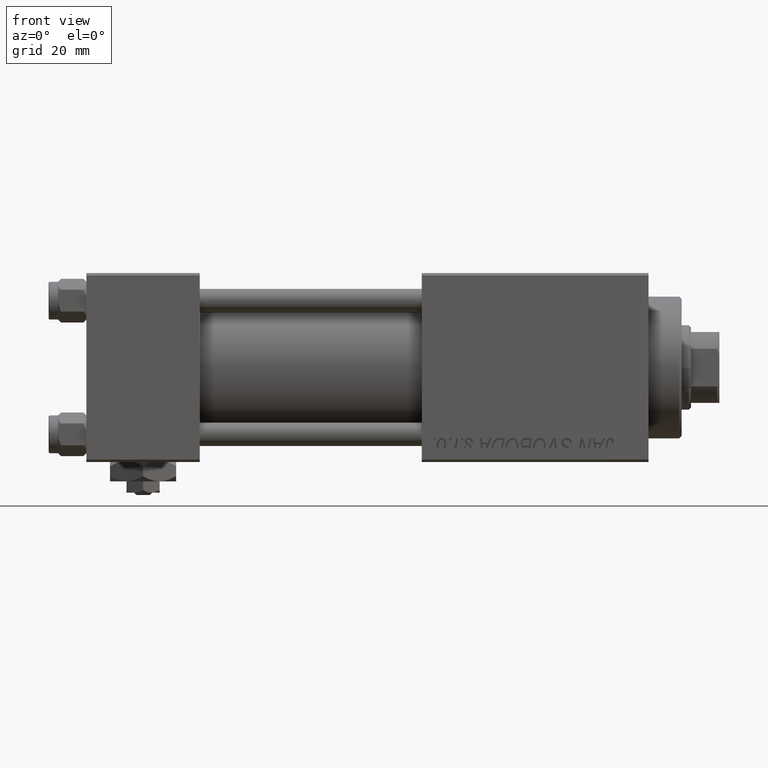
[diagram: clean part render]
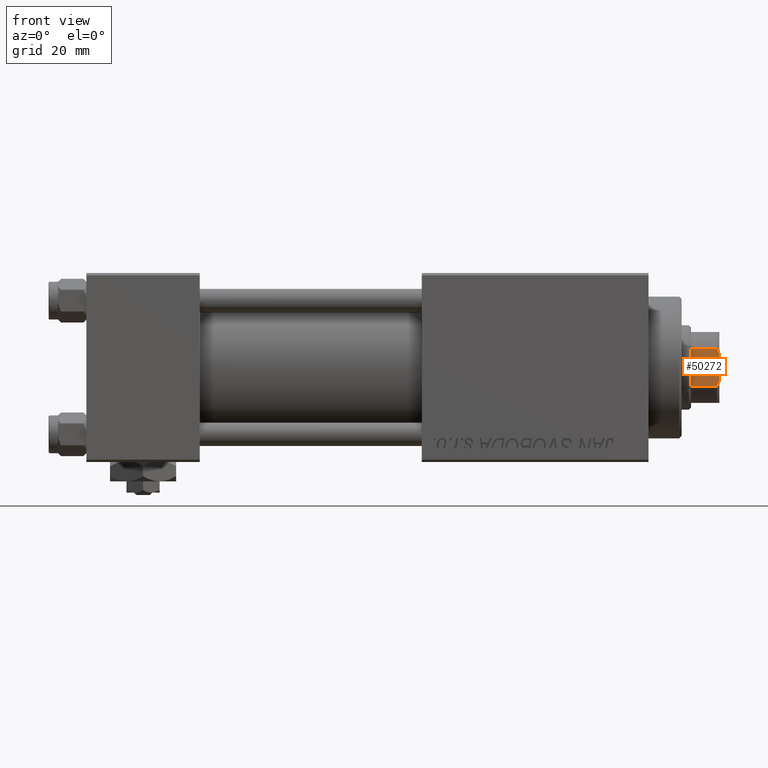
[diagram: same view with one face highlighted and labeled with its STEP entity id]
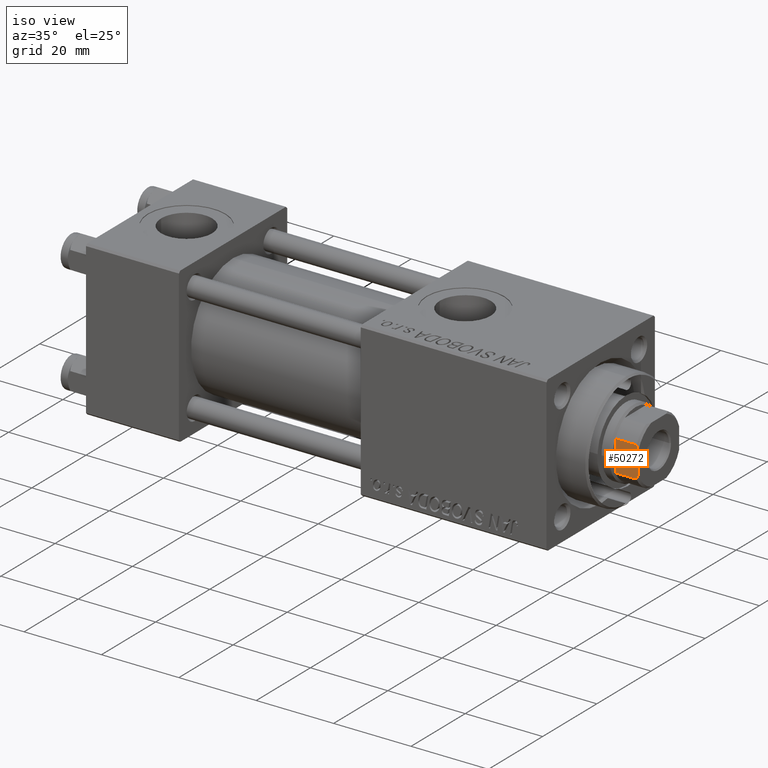
[diagram: same view with one face highlighted and labeled with its STEP entity id]
A machine part, front view. The second image highlights one B-rep face of the part: STEP entity #50272.
A second angle (iso view) of the same face is appended — the face is thin or edge-on in the first view.
In plain terms, the highlighted planar face has unit normal (0, 1, 0).
Its self-contained STEP definition (entity closure, byte-faithful):
#147 = CARTESIAN_POINT ( 'NONE',  ( 7.500000000000000000, -4.000000000000002665, 109.4999999999998579 ) ) ;
#403 = ORIENTED_EDGE ( 'NONE', *, *, #34072, .F. ) ;
#1597 = VERTEX_POINT ( 'NONE', #5292 ) ;
#2366 = EDGE_CURVE ( 'NONE', #30057, #21878, #20672, .T. ) ;
#3129 = CARTESIAN_POINT ( 'NONE',  ( 7.500000000000000888, 2.783882181414685686, 110.0000000000000000 ) ) ;
#3183 = LINE ( 'NONE', #16020, #48744 ) ;
#3701 = DIRECTION ( 'NONE',  ( -1.156482317317871478E-16, 1.000000000000000000, -0.000000000000000000 ) ) ;
#4834 = ORIENTED_EDGE ( 'NONE', *, *, #2366, .T. ) ;
#5292 = CARTESIAN_POINT ( 'NONE',  ( 7.500000000000000000, -4.000000000000002665, 104.0000000000000000 ) ) ;
#7867 = LINE ( 'NONE', #15747, #8874 ) ;
#8874 = VECTOR ( 'NONE', #11802, 1000.000000000000000 ) ;
#9196 = CARTESIAN_POINT ( 'NONE',  ( 7.500000000000001776, -3.602928590769614914, 109.6868571337553675 ) ) ;
#10065 = CARTESIAN_POINT ( 'NONE',  ( 7.500000000000000000, 7.500000000000000000, 110.0000000000000000 ) ) ;
#10633 = EDGE_CURVE ( 'NONE', #1597, #41995, #3183, .T. ) ;
#11590 = CARTESIAN_POINT ( 'NONE',  ( 7.500000000000000888, 3.198463757182493428, 109.8557317173096379 ) ) ;
#11802 = DIRECTION ( 'NONE',  ( -0.000000000000000000, -0.000000000000000000, 1.000000000000000000 ) ) ;
#13894 = ORIENTED_EDGE ( 'NONE', *, *, #50340, .T. ) ;
#13906 = AXIS2_PLACEMENT_3D ( 'NONE', #37806, #46487, #22837 ) ;
#14067 = CARTESIAN_POINT ( 'NONE',  ( 7.500000000000000000, -4.000000000000002665, -0.001000000000001000089 ) ) ;
#15529 = CARTESIAN_POINT ( 'NONE',  ( 7.500000000000000888, 2.783882181414685686, 110.0000000000000000 ) ) ;
#15747 = CARTESIAN_POINT ( 'NONE',  ( 7.500000000000000000, 4.000000000000001776, -0.001000000000001000089 ) ) ;
#16020 = CARTESIAN_POINT ( 'NONE',  ( 7.500000000000000000, 7.500000000000000000, 104.0000000000000000 ) ) ;
#19462 = CARTESIAN_POINT ( 'NONE',  ( 7.500000000000000000, 3.602928590769622907, 109.6868571337553675 ) ) ;
#20054 = B_SPLINE_CURVE_WITH_KNOTS ( 'NONE', 3,
 ( #33619, #28916, #9196, #25229 ),
 .UNSPECIFIED., .F., .F.,
 ( 4, 4 ),
 ( 4.336808689942017736E-19, 0.001314892599675292944 ),
 .UNSPECIFIED. ) ;
#20322 = CARTESIAN_POINT ( 'NONE',  ( 7.500000000000000000, 4.000000000000001776, 103.9999999999999716 ) ) ;
#20672 = B_SPLINE_CURVE_WITH_KNOTS ( 'NONE', 3,
 ( #27363, #19462, #11590, #15529 ),
 .UNSPECIFIED., .F., .F.,
 ( 4, 4 ),
 ( 9.540979117872439019E-18, 0.001314892599675281451 ),
 .UNSPECIFIED. ) ;
#21785 = PLANE ( 'NONE',  #13906 ) ;
#21878 = VERTEX_POINT ( 'NONE', #3129 ) ;
#21895 = VECTOR ( 'NONE', #26099, 1000.000000000000000 ) ;
#22837 = DIRECTION ( 'NONE',  ( 1.156482317317871478E-16, -1.000000000000000000, 0.000000000000000000 ) ) ;
#25229 = CARTESIAN_POINT ( 'NONE',  ( 7.500000000000000000, -4.000000000000002665, 109.4999999999998579 ) ) ;
#26099 = DIRECTION ( 'NONE',  ( -1.156482317317871478E-16, 1.000000000000000000, -0.000000000000000000 ) ) ;
#27363 = CARTESIAN_POINT ( 'NONE',  ( 7.500000000000000000, 4.000000000000001776, 109.4999999999998579 ) ) ;
#28916 = CARTESIAN_POINT ( 'NONE',  ( 7.500000000000000888, -3.198463757182497869, 109.8557317173096379 ) ) ;
#30057 = VERTEX_POINT ( 'NONE', #35303 ) ;
#30347 = DIRECTION ( 'NONE',  ( -0.000000000000000000, -0.000000000000000000, 1.000000000000000000 ) ) ;
#31420 = ORIENTED_EDGE ( 'NONE', *, *, #42480, .T. ) ;
#32068 = EDGE_LOOP ( 'NONE', ( #13894, #4834, #403, #31420, #36542, #32439 ) ) ;
#32439 = ORIENTED_EDGE ( 'NONE', *, *, #10633, .T. ) ;
#33242 = CARTESIAN_POINT ( 'NONE',  ( 7.500000000000000888, -2.783882181414683465, 110.0000000000000000 ) ) ;
#33619 = CARTESIAN_POINT ( 'NONE',  ( 7.500000000000000888, -2.783882181414683465, 110.0000000000000000 ) ) ;
#34072 = EDGE_CURVE ( 'NONE', #46194, #21878, #46060, .T. ) ;
#35071 = EDGE_CURVE ( 'NONE', #1597, #43319, #50834, .T. ) ;
#35303 = CARTESIAN_POINT ( 'NONE',  ( 7.500000000000000000, 4.000000000000001776, 109.4999999999998579 ) ) ;
#36542 = ORIENTED_EDGE ( 'NONE', *, *, #35071, .F. ) ;
#37806 = CARTESIAN_POINT ( 'NONE',  ( 7.500000000000000000, 7.500000000000000000, 110.0000000000000000 ) ) ;
#39568 = VECTOR ( 'NONE', #30347, 1000.000000000000000 ) ;
#41995 = VERTEX_POINT ( 'NONE', #20322 ) ;
#42480 = EDGE_CURVE ( 'NONE', #46194, #43319, #20054, .T. ) ;
#43319 = VERTEX_POINT ( 'NONE', #147 ) ;
#46060 = LINE ( 'NONE', #10065, #21895 ) ;
#46194 = VERTEX_POINT ( 'NONE', #33242 ) ;
#46487 = DIRECTION ( 'NONE',  ( -1.000000000000000000, -1.156482317317871478E-16, 0.000000000000000000 ) ) ;
#48744 = VECTOR ( 'NONE', #3701, 1000.000000000000000 ) ;
#50272 = ADVANCED_FACE ( 'NONE', ( #50424 ), #21785, .F. ) ;
#50340 = EDGE_CURVE ( 'NONE', #41995, #30057, #7867, .T. ) ;
#50424 = FACE_OUTER_BOUND ( 'NONE', #32068, .T. ) ;
#50834 = LINE ( 'NONE', #14067, #39568 ) ;